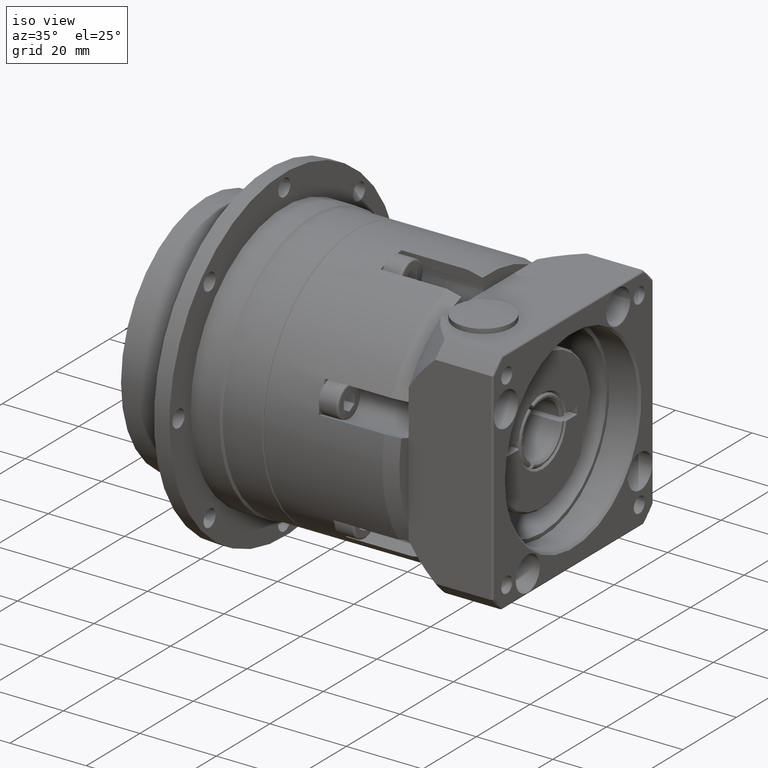
[diagram: clean part render]
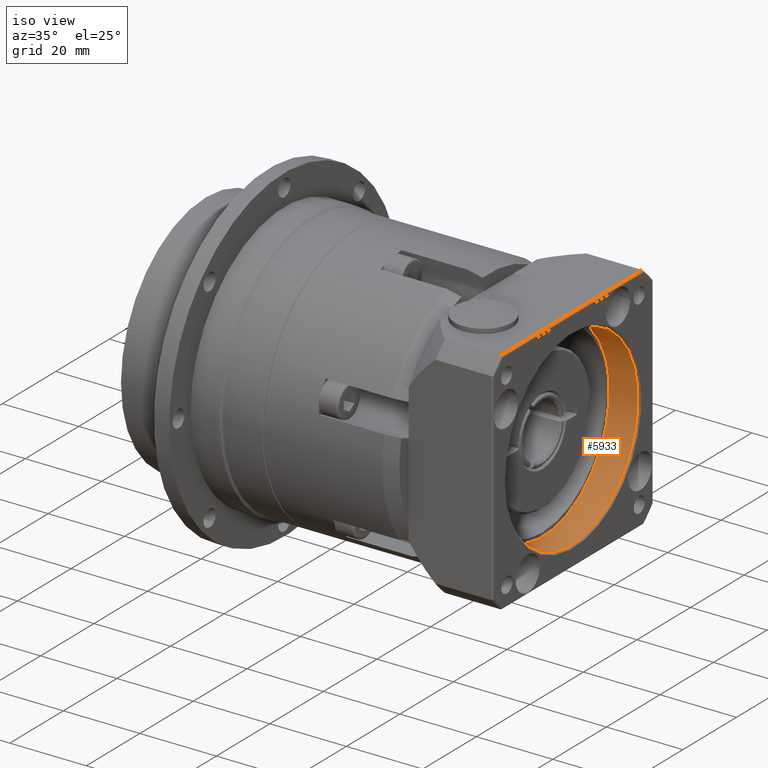
[diagram: same view with one face highlighted and labeled with its STEP entity id]
A machine part, iso view. The second image highlights one B-rep face of the part: STEP entity #5933.
In plain terms, the highlighted cylindrical surface (bore or boss wall) has radius 25 mm, axis along (-1, -0, -0).
Its self-contained STEP definition (entity closure, byte-faithful):
#1114=FACE_BOUND('',#1868,.T.);
#1400=FACE_OUTER_BOUND('',#1867,.T.);
#1867=EDGE_LOOP('',(#4443));
#1868=EDGE_LOOP('',(#4444));
#2357=CIRCLE('',#6486,25.);
#2371=CIRCLE('',#6502,25.);
#2799=VERTEX_POINT('',#9546);
#2821=VERTEX_POINT('',#9592);
#3421=EDGE_CURVE('',#2799,#2799,#2357,.T.);
#3443=EDGE_CURVE('',#2821,#2821,#2371,.T.);
#4443=ORIENTED_EDGE('',*,*,#3443,.T.);
#4444=ORIENTED_EDGE('',*,*,#3421,.F.);
#5397=CYLINDRICAL_SURFACE('',#6501,25.);
#5933=ADVANCED_FACE('',(#1400,#1114),#5397,.F.);
#6486=AXIS2_PLACEMENT_3D('',#9547,#7655,#7656);
#6501=AXIS2_PLACEMENT_3D('',#9591,#7693,#7694);
#6502=AXIS2_PLACEMENT_3D('',#9593,#7695,#7696);
#7655=DIRECTION('center_axis',(-1.,-9.92185271096767E-16,-1.71360322095966E-15));
#7656=DIRECTION('ref_axis',(-9.92185271096777E-16,1.,5.66213742558851E-15));
#7693=DIRECTION('center_axis',(-1.,-1.16982095503679E-15,-1.71360322095966E-15));
#7694=DIRECTION('ref_axis',(9.92185271096777E-16,-1.,-5.66213742558851E-15));
#7695=DIRECTION('center_axis',(-1.,-1.16982095503679E-15,-1.71360322095966E-15));
#7696=DIRECTION('ref_axis',(1.71360322095965E-15,5.66213742558851E-15,-1.));
#9546=CARTESIAN_POINT('',(45.9923939673401,-69.5811336692433,18.8582107166003));
#9547=CARTESIAN_POINT('Origin',(45.9923939673401,-44.5811336692433,18.8582107166004));
#9591=CARTESIAN_POINT('Origin',(42.4923939673401,-44.5811336692433,18.8582107166004));
#9592=CARTESIAN_POINT('',(38.4923939673401,-69.5811336692433,18.8582107166002));
#9593=CARTESIAN_POINT('Origin',(38.4923939673401,-44.5811336692433,18.8582107166004));